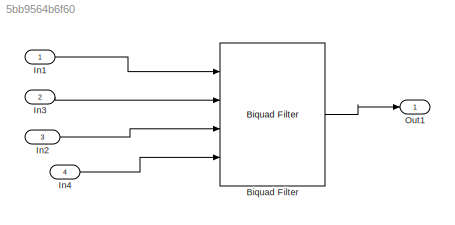
MODEL slx_5bb9564b6f60
KIND model
CONFIG AbsTol = auto
CONFIG EnableMultiTasking = off
CONFIG FixedStep = auto
CONFIG MaxStep = auto
CONFIG MinStep = auto
CONFIG RelTol = 1e-3
CONFIG SampleTimeConstraint = Unconstrained
CONFIG SolverName = VariableStepAuto
CONFIG StartTime = 0.0
CONFIG StopTime = 10.0
BLOCK [Reference] Biquad Filter  REF=dsparch4/Biquad Filter
  Ports = [4, 1]
  SourceBlock = dsparch4/Biquad Filter
  SourceProductBaseCode = DS
  SourceType = Biquad Filter
  UserDataPersistent = on
BLOCK [Inport] In1
BLOCK [Inport] In2
  Port = 3
BLOCK [Inport] In3
  Port = 2
BLOCK [Inport] In4
  Port = 4
BLOCK [Outport] Out1
LINE Biquad Filter:1 -> Out1:1
LINE In1:1 -> Biquad Filter:1
LINE In2:1 -> Biquad Filter:3
LINE In3:1 -> Biquad Filter:2
LINE In4:1 -> Biquad Filter:4
